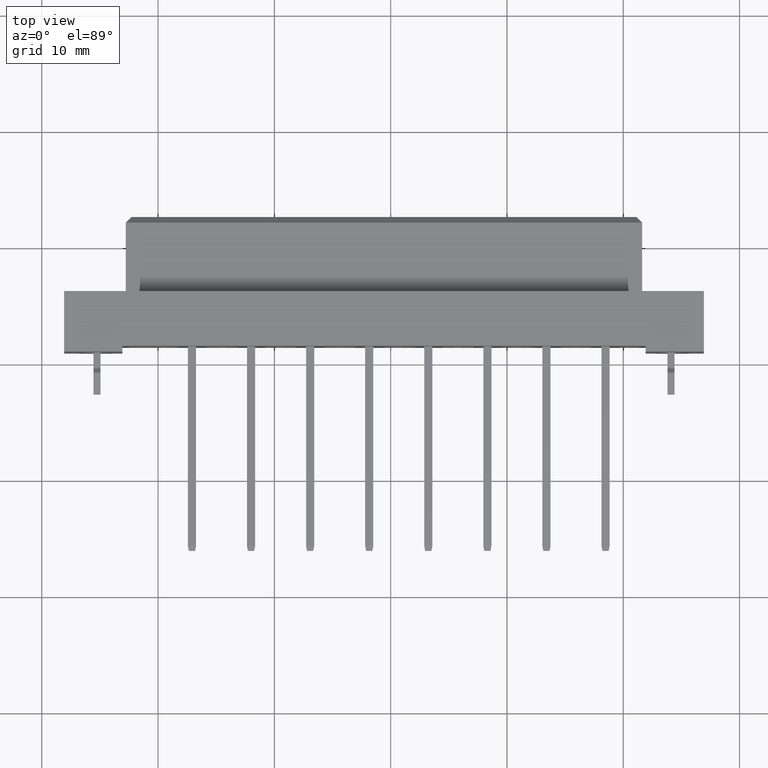
[diagram: clean part render]
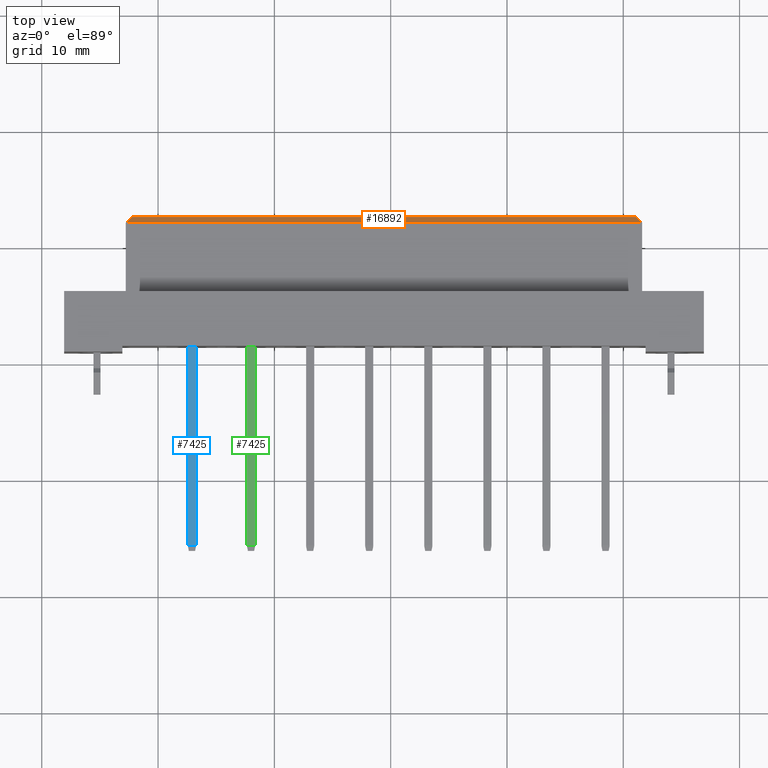
[diagram: same view with three faces highlighted in distinct colors, each labeled with its STEP entity id]
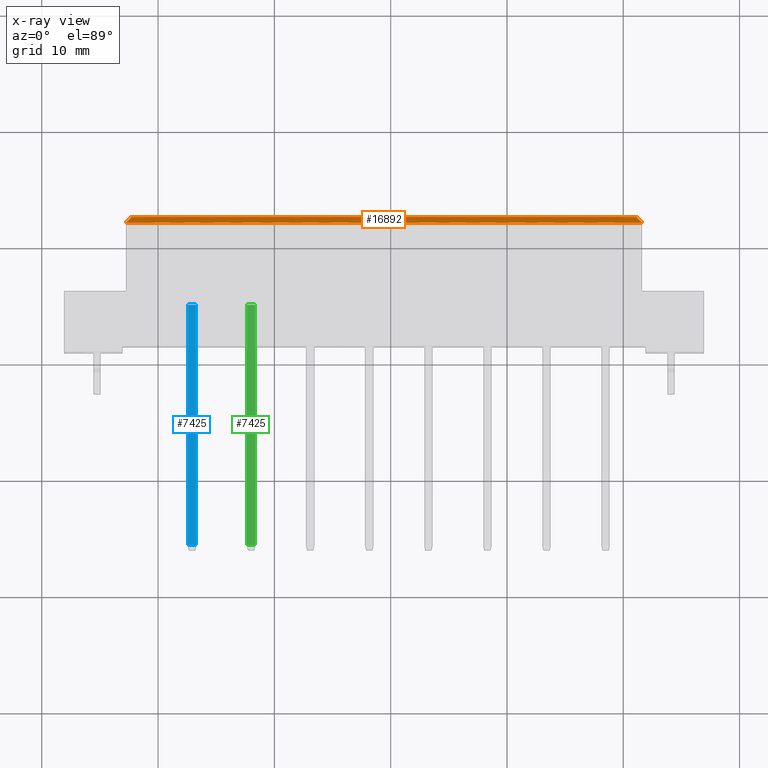
[diagram: x-ray of the same camera — body ghosted, the three highlighted faces saturated]
A machine part, top view with three faces highlighted in distinct colors.
The next image is the same camera in x-ray (body ghosted, the three faces saturated) — at least one of them is partly hidden behind the body in this view.
Their STEP definitions:

[orange] entity #16892 — the highlighted planar face has unit normal (0, 0.7071, 0.7071).
#401 = CARTESIAN_POINT ( 'NONE',  ( -5.299999999999985612, 16.39999999999999147, -12.65000000000000568 ) ) ;
#846 = DIRECTION ( 'NONE',  ( 0.0000000000000000000, 0.7071067811865475727, 0.7071067811865475727 ) ) ;
#1556 = VERTEX_POINT ( 'NONE', #10643 ) ;
#2051 = VERTEX_POINT ( 'NONE', #19281 ) ;
#2199 = DIRECTION ( 'NONE',  ( -1.000000000000000000, 0.0000000000000000000, 0.0000000000000000000 ) ) ;
#2620 = CARTESIAN_POINT ( 'NONE',  ( -22.19999999999999218, -0.5000000000000143219, 4.250000000000000888 ) ) ;
#3476 = CARTESIAN_POINT ( 'NONE',  ( -21.69999999999997797, 0.0000000000000000000, 3.749999999999986677 ) ) ;
#4308 = ORIENTED_EDGE ( 'NONE', *, *, #15179, .T. ) ;
#4688 = DIRECTION ( 'NONE',  ( 0.5773502691896257311, -0.5773502691896257311, 0.5773502691896257311 ) ) ;
#5390 = AXIS2_PLACEMENT_3D ( 'NONE', #7648, #846, #12530 ) ;
#6053 = PLANE ( 'NONE',  #5390 ) ;
#6064 = ORIENTED_EDGE ( 'NONE', *, *, #9191, .F. ) ;
#7405 = VERTEX_POINT ( 'NONE', #3476 ) ;
#7648 = CARTESIAN_POINT ( 'NONE',  ( 27.49999999999999645, 0.0000000000000000000, 3.749999999999986677 ) ) ;
#8405 = LINE ( 'NONE', #19211, #13127 ) ;
#8583 = DIRECTION ( 'NONE',  ( -0.5773502691896257311, -0.5773502691896257311, 0.5773502691896257311 ) ) ;
#9021 = ORIENTED_EDGE ( 'NONE', *, *, #11722, .F. ) ;
#9191 = EDGE_CURVE ( 'NONE', #7405, #2051, #16212, .T. ) ;
#10643 = CARTESIAN_POINT ( 'NONE',  ( 22.19999999999999218, -0.5000000000000143219, 4.250000000000000888 ) ) ;
#11561 = LINE ( 'NONE', #16739, #19582 ) ;
#11722 = EDGE_CURVE ( 'NONE', #2051, #1556, #8405, .T. ) ;
#12530 = DIRECTION ( 'NONE',  ( 0.0000000000000000000, -0.7071067811865474617, 0.7071067811865474617 ) ) ;
#13127 = VECTOR ( 'NONE', #4688, 999.9999999999998863 ) ;
#14232 = FACE_OUTER_BOUND ( 'NONE', #20606, .T. ) ;
#14652 = DIRECTION ( 'NONE',  ( 1.000000000000000000, 0.0000000000000000000, -0.0000000000000000000 ) ) ;
#15179 = EDGE_CURVE ( 'NONE', #7405, #15312, #19910, .T. ) ;
#15312 = VERTEX_POINT ( 'NONE', #2620 ) ;
#16212 = LINE ( 'NONE', #19803, #20690 ) ;
#16517 = EDGE_CURVE ( 'NONE', #1556, #15312, #11561, .T. ) ;
#16572 = VECTOR ( 'NONE', #8583, 999.9999999999998863 ) ;
#16739 = CARTESIAN_POINT ( 'NONE',  ( -22.19999999999999218, -0.5000000000000143219, 4.250000000000000888 ) ) ;
#16892 = ADVANCED_FACE ( 'NONE', ( #14232 ), #6053, .T. ) ;
#17096 = ORIENTED_EDGE ( 'NONE', *, *, #16517, .F. ) ;
#19211 = CARTESIAN_POINT ( 'NONE',  ( 23.63333333333331510, -1.933333333333340232, 5.683333333333326465 ) ) ;
#19281 = CARTESIAN_POINT ( 'NONE',  ( 21.69999999999997797, 0.0000000000000000000, 3.749999999999986677 ) ) ;
#19582 = VECTOR ( 'NONE', #2199, 1000.000000000000000 ) ;
#19803 = CARTESIAN_POINT ( 'NONE',  ( 22.19999999999999218, 0.0000000000000000000, 3.749999999999986677 ) ) ;
#19910 = LINE ( 'NONE', #401, #16572 ) ;
#20606 = EDGE_LOOP ( 'NONE', ( #4308, #17096, #9021, #6064 ) ) ;
#20690 = VECTOR ( 'NONE', #14652, 1000.000000000000000 ) ;

[blue] entity #7425 — the highlighted planar face has unit normal (0, -0, 1).
#89 = CARTESIAN_POINT ( 'NONE',  ( 20.65999999999999304, -0.1499999999999999944, 0.3499999999999999778 ) ) ;
#368 = EDGE_CURVE ( 'NONE', #535, #2059, #4593, .T. ) ;
#535 = VERTEX_POINT ( 'NONE', #4338 ) ;
#624 = DIRECTION ( 'NONE',  ( 1.000000000000000000, 0.0000000000000000000, 0.0000000000000000000 ) ) ;
#2059 = VERTEX_POINT ( 'NONE', #89 ) ;
#2895 = DIRECTION ( 'NONE',  ( -0.0000000000000000000, -0.0000000000000000000, 1.000000000000000000 ) ) ;
#3279 = EDGE_CURVE ( 'NONE', #12334, #8492, #3581, .T. ) ;
#3397 = CARTESIAN_POINT ( 'NONE',  ( 0.0000000000000000000, -0.1499999999999999944, 0.3499999999999999778 ) ) ;
#3581 = LINE ( 'NONE', #10380, #11844 ) ;
#4248 = LINE ( 'NONE', #9249, #13162 ) ;
#4338 = CARTESIAN_POINT ( 'NONE',  ( 0.0000000000000000000, -0.1499999999999999944, 0.3499999999999999778 ) ) ;
#4593 = LINE ( 'NONE', #3397, #20895 ) ;
#6650 = ORIENTED_EDGE ( 'NONE', *, *, #368, .F. ) ;
#6655 = CARTESIAN_POINT ( 'NONE',  ( 0.0000000000000000000, -0.1499999999999999944, -0.3499999999999999778 ) ) ;
#6672 = CARTESIAN_POINT ( 'NONE',  ( 0.0000000000000000000, -0.1499999999999999944, -0.3499999999999999778 ) ) ;
#6822 = EDGE_CURVE ( 'NONE', #8492, #535, #12560, .T. ) ;
#7425 = ADVANCED_FACE ( 'NONE', ( #14744 ), #17893, .T. ) ;
#8330 = ORIENTED_EDGE ( 'NONE', *, *, #16266, .T. ) ;
#8492 = VERTEX_POINT ( 'NONE', #6672 ) ;
#9249 = CARTESIAN_POINT ( 'NONE',  ( 20.65999999999999304, -0.1499999999999999944, 0.3499999999999999778 ) ) ;
#10282 = DIRECTION ( 'NONE',  ( -1.000000000000000000, -0.0000000000000000000, -0.0000000000000000000 ) ) ;
#10380 = CARTESIAN_POINT ( 'NONE',  ( 0.0000000000000000000, -0.1499999999999999944, -0.3499999999999999778 ) ) ;
#10582 = VECTOR ( 'NONE', #2895, 1000.000000000000000 ) ;
#11550 = DIRECTION ( 'NONE',  ( 0.0000000000000000000, -0.0000000000000000000, -1.000000000000000000 ) ) ;
#11844 = VECTOR ( 'NONE', #10282, 1000.000000000000000 ) ;
#12334 = VERTEX_POINT ( 'NONE', #17356 ) ;
#12422 = DIRECTION ( 'NONE',  ( 0.0000000000000000000, 0.0000000000000000000, 1.000000000000000000 ) ) ;
#12560 = LINE ( 'NONE', #19009, #10582 ) ;
#13162 = VECTOR ( 'NONE', #12422, 1000.000000000000000 ) ;
#13444 = DIRECTION ( 'NONE',  ( 0.0000000000000000000, -1.000000000000000000, 0.0000000000000000000 ) ) ;
#14666 = AXIS2_PLACEMENT_3D ( 'NONE', #6655, #13444, #11550 ) ;
#14744 = FACE_OUTER_BOUND ( 'NONE', #20036, .T. ) ;
#16266 = EDGE_CURVE ( 'NONE', #12334, #2059, #4248, .T. ) ;
#16696 = ORIENTED_EDGE ( 'NONE', *, *, #3279, .F. ) ;
#17356 = CARTESIAN_POINT ( 'NONE',  ( 20.65999999999999304, -0.1499999999999999944, -0.3499999999999999778 ) ) ;
#17893 = PLANE ( 'NONE',  #14666 ) ;
#17962 = ORIENTED_EDGE ( 'NONE', *, *, #6822, .F. ) ;
#19009 = CARTESIAN_POINT ( 'NONE',  ( 0.0000000000000000000, -0.1499999999999999944, 0.3499999999999999778 ) ) ;
#20036 = EDGE_LOOP ( 'NONE', ( #16696, #8330, #6650, #17962 ) ) ;
#20895 = VECTOR ( 'NONE', #624, 1000.000000000000000 ) ;

[green] entity #7425 — the highlighted planar face has unit normal (0, -0, 1).
#89 = CARTESIAN_POINT ( 'NONE',  ( 20.65999999999999304, -0.1499999999999999944, 0.3499999999999999778 ) ) ;
#368 = EDGE_CURVE ( 'NONE', #535, #2059, #4593, .T. ) ;
#535 = VERTEX_POINT ( 'NONE', #4338 ) ;
#624 = DIRECTION ( 'NONE',  ( 1.000000000000000000, 0.0000000000000000000, 0.0000000000000000000 ) ) ;
#2059 = VERTEX_POINT ( 'NONE', #89 ) ;
#2895 = DIRECTION ( 'NONE',  ( -0.0000000000000000000, -0.0000000000000000000, 1.000000000000000000 ) ) ;
#3279 = EDGE_CURVE ( 'NONE', #12334, #8492, #3581, .T. ) ;
#3397 = CARTESIAN_POINT ( 'NONE',  ( 0.0000000000000000000, -0.1499999999999999944, 0.3499999999999999778 ) ) ;
#3581 = LINE ( 'NONE', #10380, #11844 ) ;
#4248 = LINE ( 'NONE', #9249, #13162 ) ;
#4338 = CARTESIAN_POINT ( 'NONE',  ( 0.0000000000000000000, -0.1499999999999999944, 0.3499999999999999778 ) ) ;
#4593 = LINE ( 'NONE', #3397, #20895 ) ;
#6650 = ORIENTED_EDGE ( 'NONE', *, *, #368, .F. ) ;
#6655 = CARTESIAN_POINT ( 'NONE',  ( 0.0000000000000000000, -0.1499999999999999944, -0.3499999999999999778 ) ) ;
#6672 = CARTESIAN_POINT ( 'NONE',  ( 0.0000000000000000000, -0.1499999999999999944, -0.3499999999999999778 ) ) ;
#6822 = EDGE_CURVE ( 'NONE', #8492, #535, #12560, .T. ) ;
#7425 = ADVANCED_FACE ( 'NONE', ( #14744 ), #17893, .T. ) ;
#8330 = ORIENTED_EDGE ( 'NONE', *, *, #16266, .T. ) ;
#8492 = VERTEX_POINT ( 'NONE', #6672 ) ;
#9249 = CARTESIAN_POINT ( 'NONE',  ( 20.65999999999999304, -0.1499999999999999944, 0.3499999999999999778 ) ) ;
#10282 = DIRECTION ( 'NONE',  ( -1.000000000000000000, -0.0000000000000000000, -0.0000000000000000000 ) ) ;
#10380 = CARTESIAN_POINT ( 'NONE',  ( 0.0000000000000000000, -0.1499999999999999944, -0.3499999999999999778 ) ) ;
#10582 = VECTOR ( 'NONE', #2895, 1000.000000000000000 ) ;
#11550 = DIRECTION ( 'NONE',  ( 0.0000000000000000000, -0.0000000000000000000, -1.000000000000000000 ) ) ;
#11844 = VECTOR ( 'NONE', #10282, 1000.000000000000000 ) ;
#12334 = VERTEX_POINT ( 'NONE', #17356 ) ;
#12422 = DIRECTION ( 'NONE',  ( 0.0000000000000000000, 0.0000000000000000000, 1.000000000000000000 ) ) ;
#12560 = LINE ( 'NONE', #19009, #10582 ) ;
#13162 = VECTOR ( 'NONE', #12422, 1000.000000000000000 ) ;
#13444 = DIRECTION ( 'NONE',  ( 0.0000000000000000000, -1.000000000000000000, 0.0000000000000000000 ) ) ;
#14666 = AXIS2_PLACEMENT_3D ( 'NONE', #6655, #13444, #11550 ) ;
#14744 = FACE_OUTER_BOUND ( 'NONE', #20036, .T. ) ;
#16266 = EDGE_CURVE ( 'NONE', #12334, #2059, #4248, .T. ) ;
#16696 = ORIENTED_EDGE ( 'NONE', *, *, #3279, .F. ) ;
#17356 = CARTESIAN_POINT ( 'NONE',  ( 20.65999999999999304, -0.1499999999999999944, -0.3499999999999999778 ) ) ;
#17893 = PLANE ( 'NONE',  #14666 ) ;
#17962 = ORIENTED_EDGE ( 'NONE', *, *, #6822, .F. ) ;
#19009 = CARTESIAN_POINT ( 'NONE',  ( 0.0000000000000000000, -0.1499999999999999944, 0.3499999999999999778 ) ) ;
#20036 = EDGE_LOOP ( 'NONE', ( #16696, #8330, #6650, #17962 ) ) ;
#20895 = VECTOR ( 'NONE', #624, 1000.000000000000000 ) ;